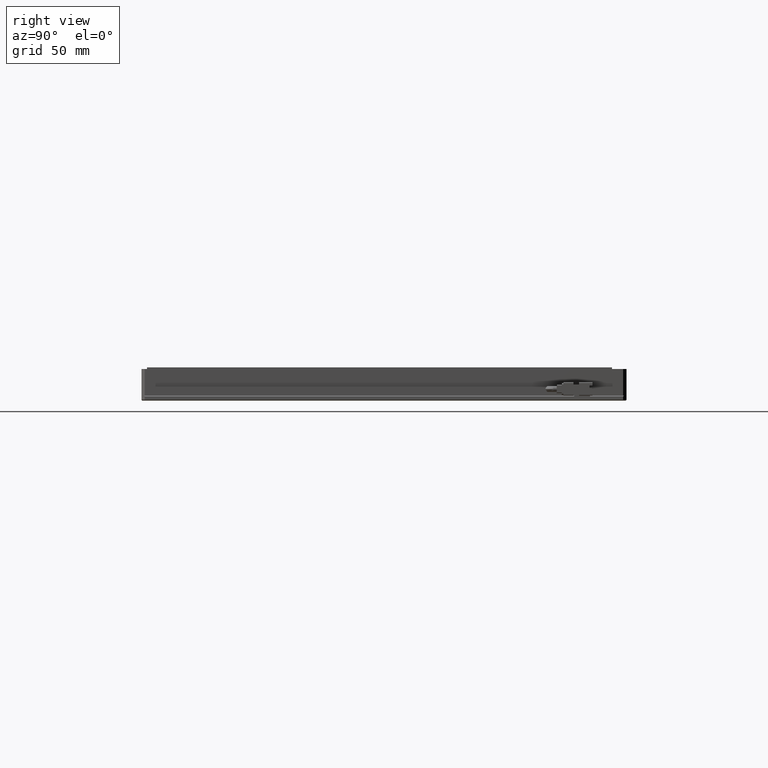
[diagram: clean part render]
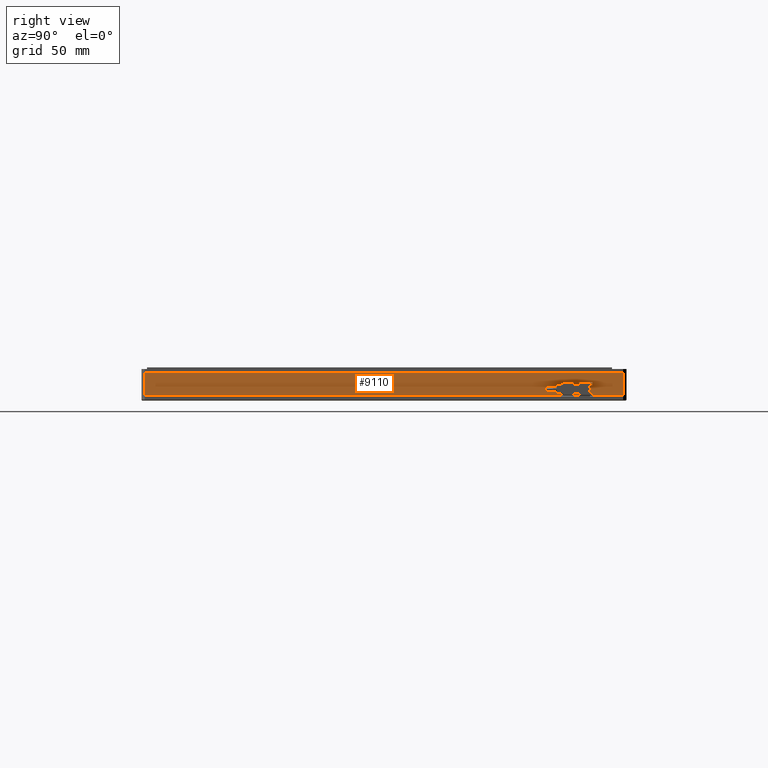
[diagram: same view with one face highlighted and labeled with its STEP entity id]
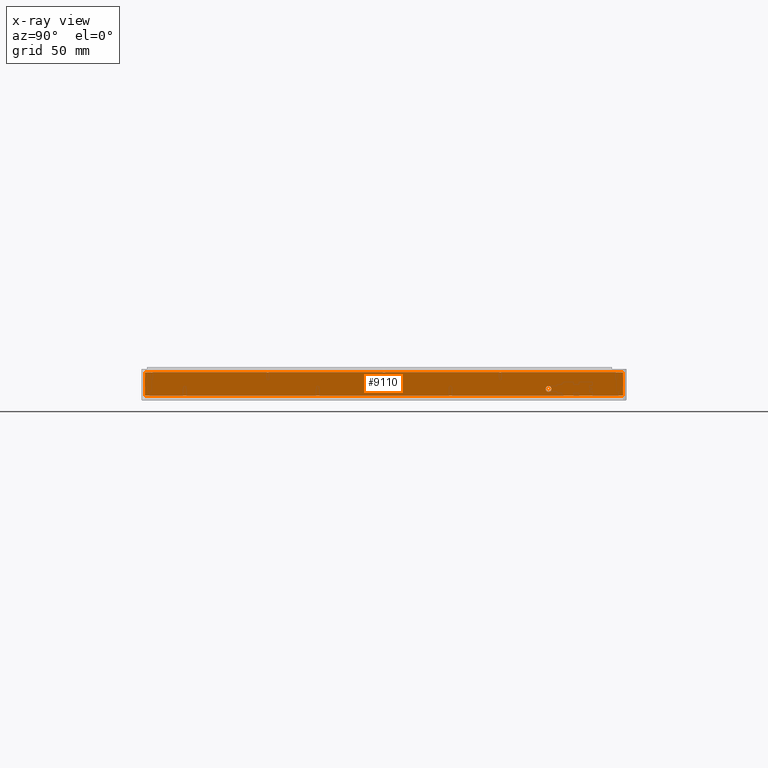
[diagram: x-ray of the same camera — body ghosted, the highlighted face saturated]
A machine part, right view. The second image highlights one B-rep face of the part: STEP entity #9110.
The next image is the same camera in x-ray: the body ghosted, the highlighted face saturated — about 0% of this face is hidden behind the body in this view.
In plain terms, the highlighted planar face has unit normal (-1, 0, 0).
Its self-contained STEP definition (entity closure, byte-faithful):
#158 = DIRECTION ( 'NONE',  ( -0.0000000000000000000, -1.000000000000000000, 0.0000000000000000000 ) ) ;
#842 = CARTESIAN_POINT ( 'NONE',  ( 178.9193228736581300, 157.2698045692267200, -7.000000000028197000 ) ) ;
#1079 = CARTESIAN_POINT ( 'NONE',  ( 178.9193228736581300, 112.2698045692266400, -3.000000000028194300 ) ) ;
#1374 = CARTESIAN_POINT ( 'NONE',  ( 178.9193228736581300, 112.2698045692266400, -1.250000000028193000 ) ) ;
#1912 = VECTOR ( 'NONE', #17099, 1000.000000000000000 ) ;
#2354 = CARTESIAN_POINT ( 'NONE',  ( 178.9193228736581300, 157.2698045692266600, 6.999999999971805700 ) ) ;
#2490 = AXIS2_PLACEMENT_3D ( 'NONE', #17682, #10458, #19547 ) ;
#2517 = CARTESIAN_POINT ( 'NONE',  ( 178.9193228736581900, -132.7301954307733600, 6.999999999971805700 ) ) ;
#2671 = DIRECTION ( 'NONE',  ( -0.0000000000000000000, 1.000000000000000000, 0.0000000000000000000 ) ) ;
#3036 = VERTEX_POINT ( 'NONE', #2354 ) ;
#3175 = ORIENTED_EDGE ( 'NONE', *, *, #22206, .F. ) ;
#3344 = VERTEX_POINT ( 'NONE', #1374 ) ;
#3407 = CARTESIAN_POINT ( 'NONE',  ( 178.9193228736581300, 157.2698045692266600, 6.999999999971805700 ) ) ;
#4532 = CARTESIAN_POINT ( 'NONE',  ( 178.9193228736581900, -130.7301954307732200, 6.999999999971805700 ) ) ;
#4827 = PLANE ( 'NONE',  #2490 ) ;
#5251 = DIRECTION ( 'NONE',  ( 0.0000000000000000000, 0.0000000000000000000, 1.000000000000000000 ) ) ;
#6181 = CIRCLE ( 'NONE', #8953, 1.750000000000001600 ) ;
#6637 = EDGE_CURVE ( 'NONE', #19594, #23713, #7833, .T. ) ;
#7833 = LINE ( 'NONE', #20280, #23703 ) ;
#8231 = DIRECTION ( 'NONE',  ( 0.0000000000000000000, 0.0000000000000000000, 1.000000000000000000 ) ) ;
#8940 = EDGE_CURVE ( 'NONE', #21711, #23713, #15108, .T. ) ;
#8953 = AXIS2_PLACEMENT_3D ( 'NONE', #22205, #18462, #14995 ) ;
#9110 = ADVANCED_FACE ( 'NONE', ( #21482, #19150 ), #4827, .F. ) ;
#9239 = ORIENTED_EDGE ( 'NONE', *, *, #8940, .T. ) ;
#10458 = DIRECTION ( 'NONE',  ( -1.000000000000000000, 0.0000000000000000000, 0.0000000000000000000 ) ) ;
#11158 = VECTOR ( 'NONE', #5251, 1000.000000000000000 ) ;
#12094 = ORIENTED_EDGE ( 'NONE', *, *, #18501, .F. ) ;
#13445 = CARTESIAN_POINT ( 'NONE',  ( 178.9193228736581300, 112.2698045692266400, -4.750000000028196100 ) ) ;
#13486 = AXIS2_PLACEMENT_3D ( 'NONE', #1079, #19405, #8231 ) ;
#13712 = VECTOR ( 'NONE', #2671, 1000.000000000000000 ) ;
#14341 = ORIENTED_EDGE ( 'NONE', *, *, #21853, .F. ) ;
#14844 = CARTESIAN_POINT ( 'NONE',  ( 178.9193228736581900, -130.7301954307732200, -7.000000000028196100 ) ) ;
#14995 = DIRECTION ( 'NONE',  ( 0.0000000000000000000, 0.0000000000000000000, 1.000000000000000000 ) ) ;
#15108 = LINE ( 'NONE', #15419, #1912 ) ;
#15129 = LINE ( 'NONE', #2517, #13712 ) ;
#15320 = VERTEX_POINT ( 'NONE', #13445 ) ;
#15419 = CARTESIAN_POINT ( 'NONE',  ( 178.9193228736582500, -130.7301954307731900, 6.999999999971805700 ) ) ;
#16116 = EDGE_LOOP ( 'NONE', ( #20205, #3175, #9239, #21702 ) ) ;
#17099 = DIRECTION ( 'NONE',  ( -0.0000000000000000000, -0.0000000000000000000, -1.000000000000000000 ) ) ;
#17457 = LINE ( 'NONE', #3407, #11158 ) ;
#17682 = CARTESIAN_POINT ( 'NONE',  ( 178.9193228736581300, 159.2698045692266900, 6.999999999971805700 ) ) ;
#17737 = EDGE_CURVE ( 'NONE', #19594, #3036, #17457, .T. ) ;
#17862 = EDGE_LOOP ( 'NONE', ( #14341, #12094 ) ) ;
#18462 = DIRECTION ( 'NONE',  ( 1.000000000000000000, 0.0000000000000000000, 0.0000000000000000000 ) ) ;
#18501 = EDGE_CURVE ( 'NONE', #15320, #3344, #6181, .T. ) ;
#19150 = FACE_BOUND ( 'NONE', #17862, .T. ) ;
#19405 = DIRECTION ( 'NONE',  ( 1.000000000000000000, 0.0000000000000000000, 0.0000000000000000000 ) ) ;
#19505 = CIRCLE ( 'NONE', #13486, 1.750000000000001600 ) ;
#19547 = DIRECTION ( 'NONE',  ( 0.0000000000000000000, 0.0000000000000000000, 1.000000000000000000 ) ) ;
#19594 = VERTEX_POINT ( 'NONE', #842 ) ;
#20205 = ORIENTED_EDGE ( 'NONE', *, *, #17737, .T. ) ;
#20280 = CARTESIAN_POINT ( 'NONE',  ( 178.9193228736581300, 159.2698045692266900, -7.000000000028194300 ) ) ;
#21482 = FACE_OUTER_BOUND ( 'NONE', #16116, .T. ) ;
#21702 = ORIENTED_EDGE ( 'NONE', *, *, #6637, .F. ) ;
#21711 = VERTEX_POINT ( 'NONE', #4532 ) ;
#21853 = EDGE_CURVE ( 'NONE', #3344, #15320, #19505, .T. ) ;
#22205 = CARTESIAN_POINT ( 'NONE',  ( 178.9193228736581300, 112.2698045692266400, -3.000000000028194300 ) ) ;
#22206 = EDGE_CURVE ( 'NONE', #21711, #3036, #15129, .T. ) ;
#23703 = VECTOR ( 'NONE', #158, 1000.000000000000000 ) ;
#23713 = VERTEX_POINT ( 'NONE', #14844 ) ;